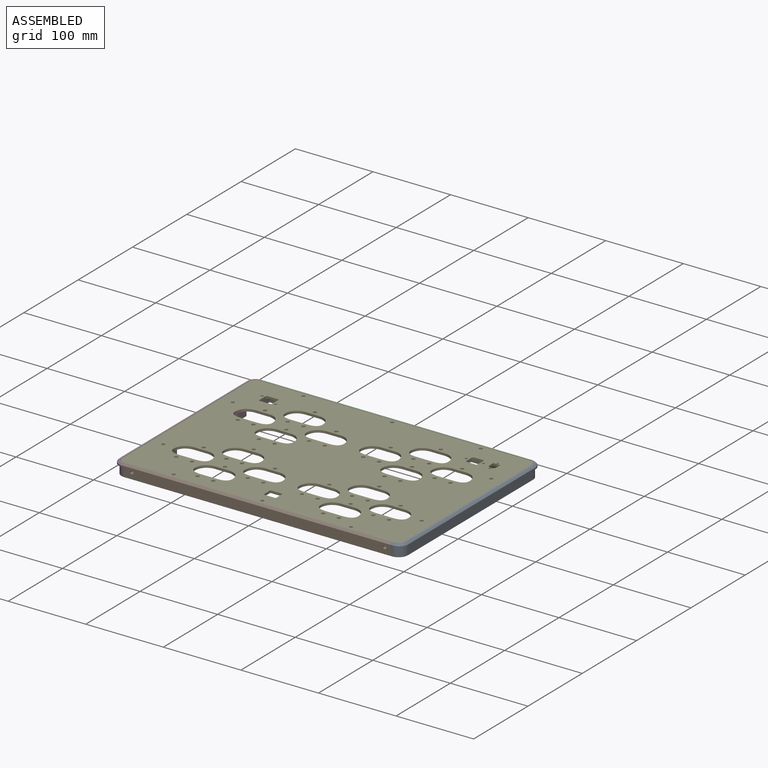
[diagram: assembled view]
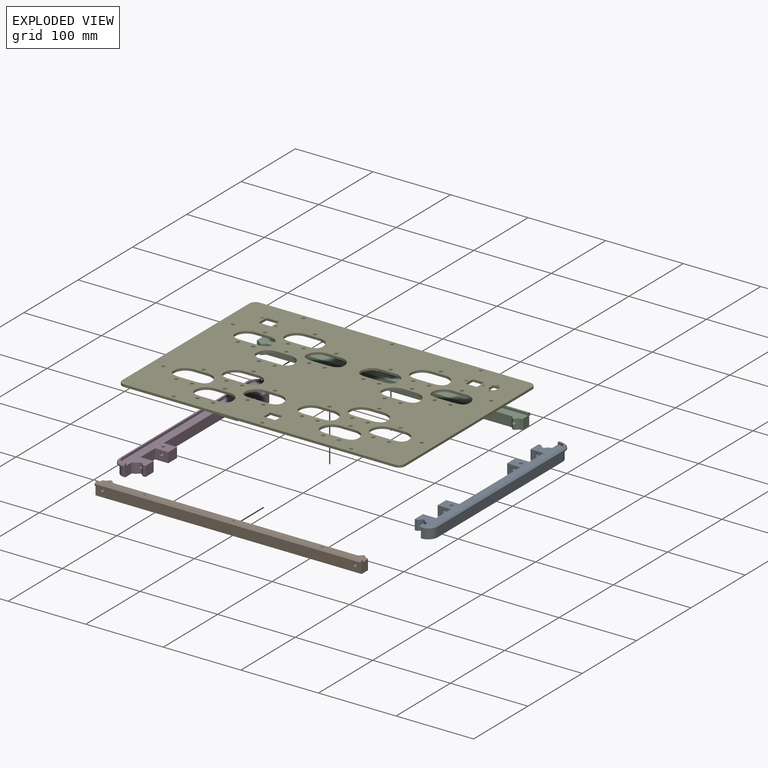
[diagram: exploded view]
GUIDED TOUR — MATED ASSEMBLY (Onshape document bec6d169b507df4146d0d904, AutoMate assembly bec6d169b507df4146d0d904_c9003fdbdb5de27b9853175a_92774588e3540b95fff6c038_default)

This assembly has 5 components, labeled P0..P4 below (a component is one placed occurrence of a part; the same part can appear more than once), held together by 13 mates. A mate is a constraint between two components; its type names the relative motion it leaves free:
  PLANAR — leaves sliding in the plane through the listed point (normal = the listed direction) and rotation about that normal free.
Axis/direction vectors are unit vectors and 'through' points are millimeter coordinates, both in the assembly's world frame.

MATES
  1. PLANAR "Planar 11": P4 <-> P2, direction (0.000, 0.000, -1.000) through (203.62, 140.74, 5.19) mm
  2. PLANAR "Planar 13": P4 <-> P1, direction (0.000, -1.000, 0.000) through (203.72, 14.48, 6.69) mm
  3. PLANAR "Planar 2": P1 <-> P3, direction (-1.000, 0.000, 0.000) through (32.22, 17.31, -0.67) mm
  4. PLANAR "Planar 5": P3 <-> P1, direction (0.000, 0.000, 1.000) through (30.47, 139.28, 5.19) mm
  5. PLANAR "Planar 10": P0 <-> P2, direction (0.000, 1.000, 0.000) through (375.77, 266.38, -1.71) mm
  6. PLANAR "Planar 8": P2 <-> P0, direction (1.000, 0.000, 0.000) through (375.22, 261.25, -0.67) mm
  7. PLANAR "Planar 12": P4 <-> P3, direction (-1.000, 0.000, 0.000) through (21.42, 139.28, 6.69) mm
  8. PLANAR "Planar 7": P0 <-> P1, direction (0.000, -1.000, 0.000) through (375.77, 12.18, -1.71) mm
  9. PLANAR "Planar 9": P2 <-> P0, direction (0.000, 0.000, 1.000) through (203.72, 258.70, 5.19) mm
  10. PLANAR "Planar 4": P1 <-> P3, direction (-1.000, 0.000, 0.000) through (32.22, 17.31, -0.67) mm
  11. PLANAR "Planar 1": P0 <-> P1, direction (0.000, 0.000, 1.000) through (376.96, 139.28, 5.19) mm
  12. PLANAR "Planar 6": P3 <-> P1, direction (0.000, -1.000, 0.000) through (31.67, 12.18, -1.71) mm
  13. PLANAR "Planar 3": P0 <-> P1, direction (-1.000, 0.000, 0.000) through (375.22, 17.31, -0.67) mm

ASSEMBLY ORDER
  1. P3 — the base component [order verified]
  2. P2 [order verified]
  3. P1 [order verified]
  4. P4 [order verified]
  5. P0 [order verified]
Order-tag legend:
  [order verified] — this step's position reverses a verified removal order: the component was checked to insert without passing through the ones already placed.

Of the 5 components, 4 carry the full construction recipe — the FeatureScript program that regenerates the part's solid from scratch; the rest are supplied as boundary geometry only.
Each toured component is shown spotlighted twice — in the assembled view, then in the exploded view, where a leader line traces a displaced component back to its assembled socket (saturated green if recipe-attached, orange if geometry-only; every other component desaturated gray) — followed by its recipe or geometry summary and the mates that hold it.
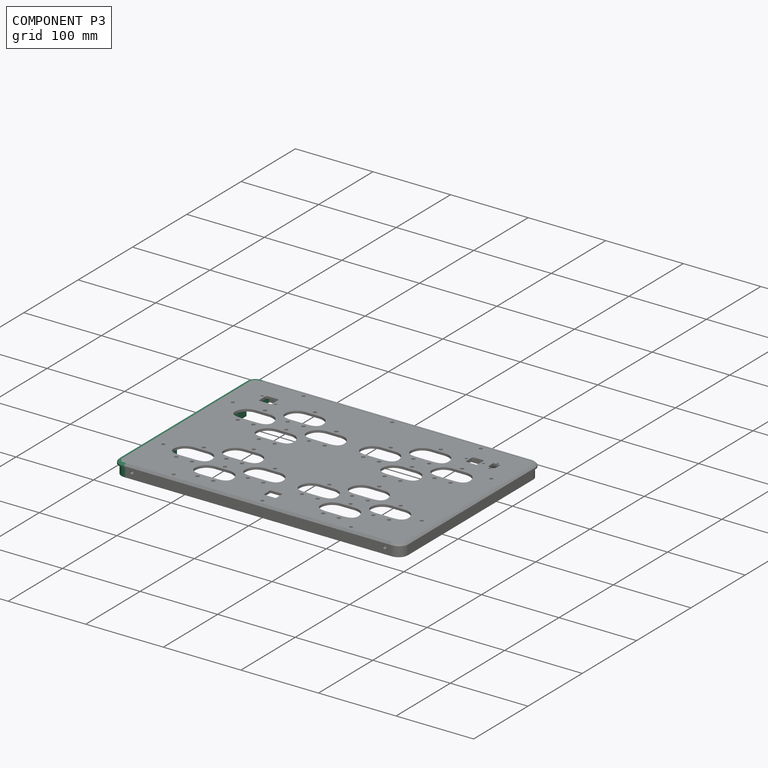
[diagram: component P3 — assembled]
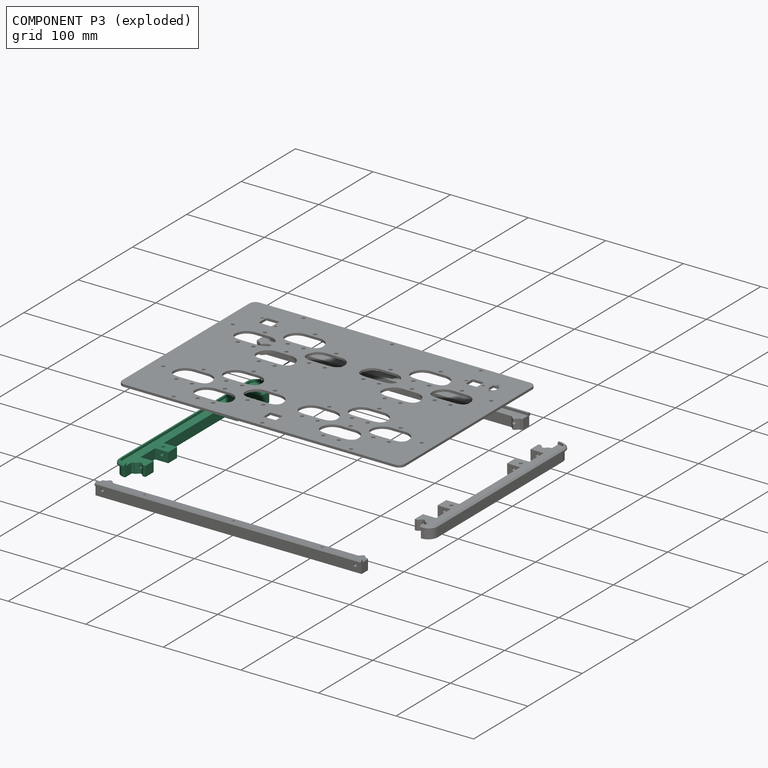
[diagram: component P3 — exploded]
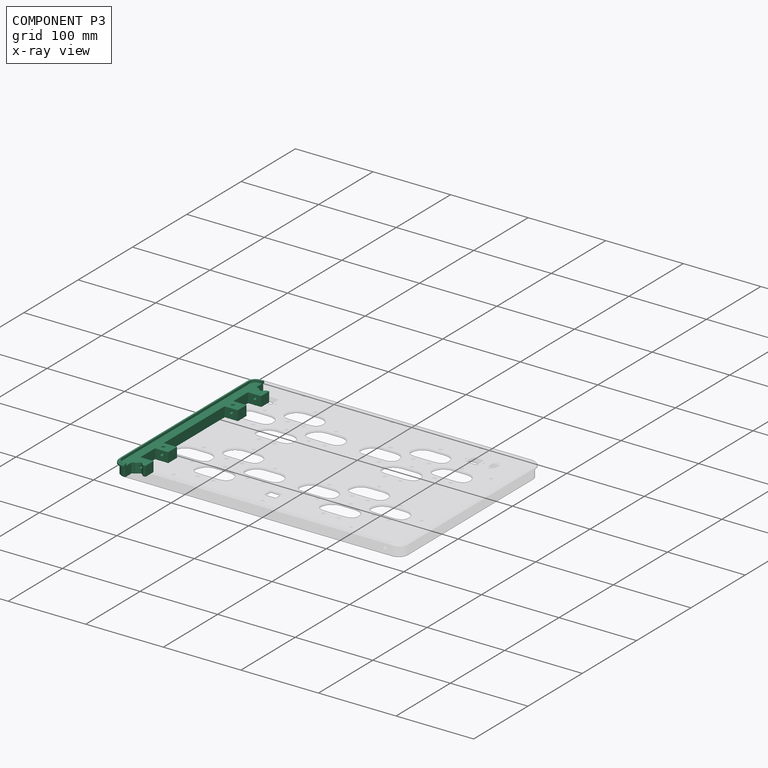
[diagram: component P3 — x-ray view]
COMPONENT P3 — same part as P0 (CADFS 00203078); its construction recipe is shown at P0.
Held by: PLANAR mate "Planar 2" to P1; PLANAR mate "Planar 5" to P1; PLANAR mate "Planar 12" to P4; PLANAR mate "Planar 4" to P1; PLANAR mate "Planar 6" to P1.
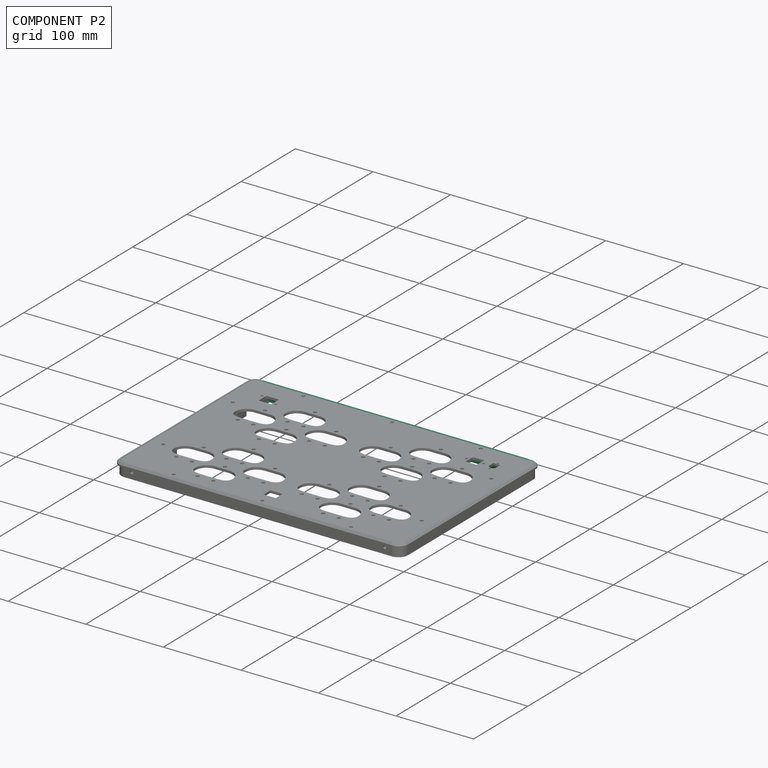
[diagram: component P2 — assembled]
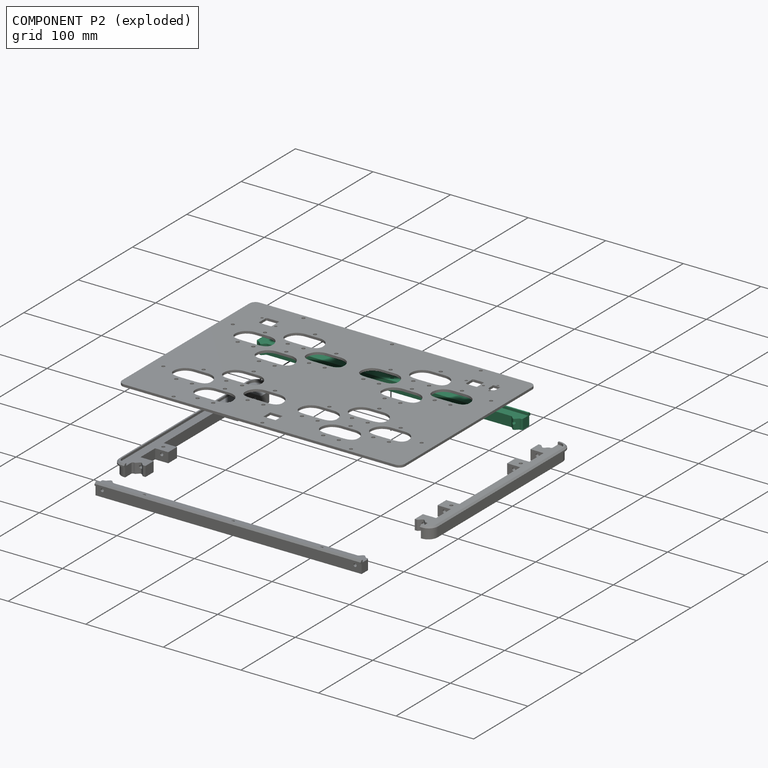
[diagram: component P2 — exploded]
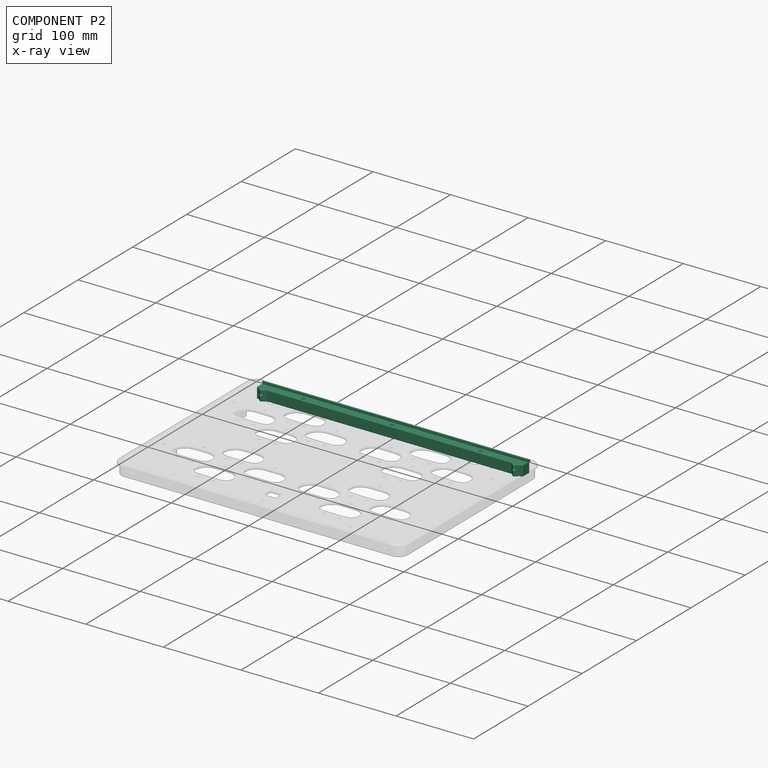
[diagram: component P2 — x-ray view]
COMPONENT P2 — same part as P1 (CADFS 00203082); its construction recipe is shown at P1.
Held by: PLANAR mate "Planar 11" to P4; PLANAR mate "Planar 10" to P0; PLANAR mate "Planar 8" to P0; PLANAR mate "Planar 9" to P0.
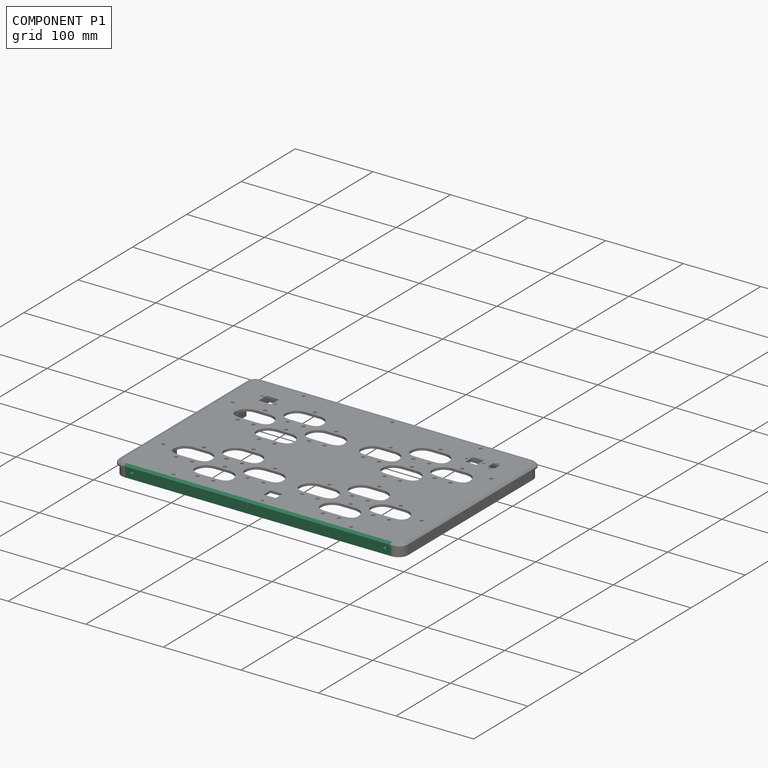
[diagram: component P1 — assembled]
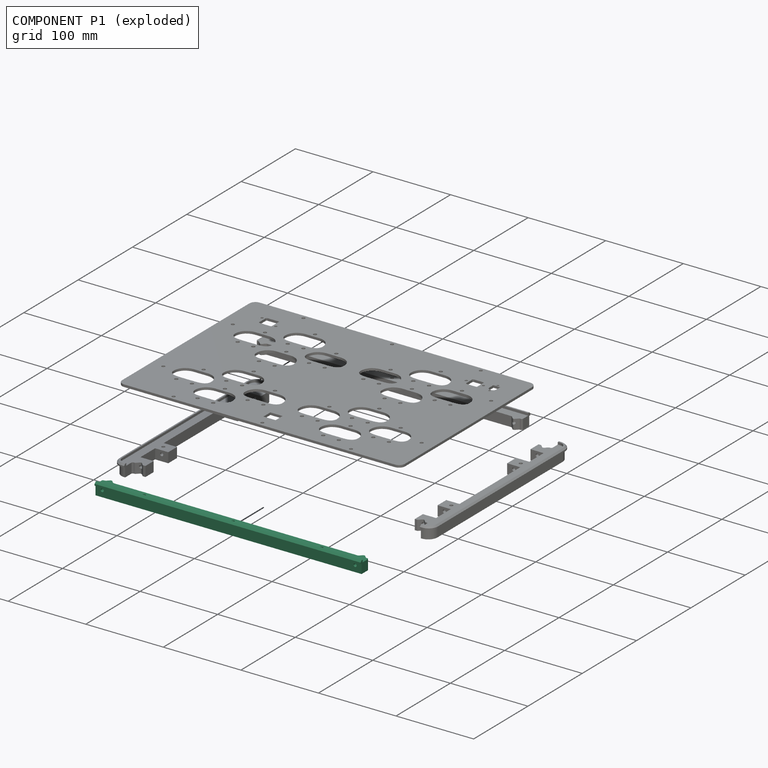
[diagram: component P1 — exploded]
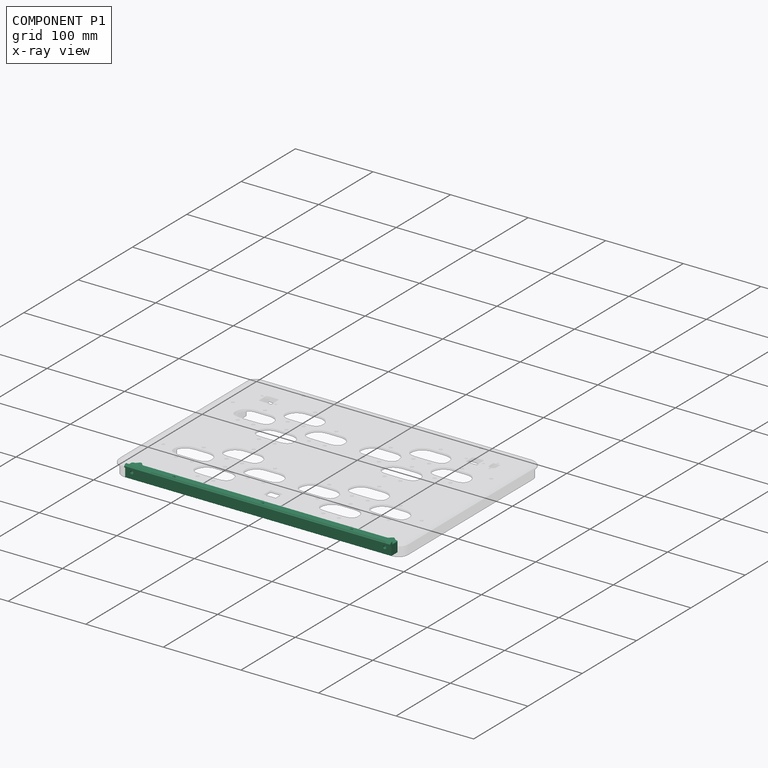
[diagram: component P1 — x-ray view]
COMPONENT P1 — recipe-attached (CADFS 00203082, mesh-verified: the recipe's output STEP matches this component's geometry to below the mesh-comparison resolution (tessellation chordal tolerance ~0.516 mm)).
Held by: PLANAR mate "Planar 13" to P4; PLANAR mate "Planar 2" to P3; PLANAR mate "Planar 5" to P3; PLANAR mate "Planar 7" to P0; PLANAR mate "Planar 4" to P3; PLANAR mate "Planar 1" to P0; PLANAR mate "Planar 6" to P3; PLANAR mate "Planar 3" to P0.
Construction recipe (FeatureScript — the CAD program that rebuilds this solid; sketch coordinates are in the units given by the * unit suffixes, e.g. mm):

FeatureScript 1511;
import(path : "onshape/std/geometry.fs", version : "1511.0");
import(path : "onshape/std/common.fs", version : "1511.0");
const mm = millimeter;
const VERTEX = EntityType.VERTEX;
const EDGE = EntityType.EDGE;
const FACE = EntityType.FACE;
const BODY = EntityType.BODY;
function v(x, y){return vector(x, y);}
function OD(order){return orderDisambiguation(order);}
function OSD(set){return originalSetDisambiguation(set);}
function TD(topology){return topologyDisambiguation(topology);}
function TDD(query){return trueDependencyDisambiguation(query);}
function sQuery(a, b, c) {return sketchEntityQuery(a, b, c);}

annotation { "Feature Type Name" : "Feature", "Feature Type Description" : "" }
export const myFeature = defineFeature(function(context is Context, id is Id, definition is map)
    precondition{}
    {
        {
            var Q0;
            Q0=qCreatedBy(makeId("Top.planeOp"),FACE);
            var sketch = newSketch(context, id + "F0", { "sketchPlane" : qUnion([Q0])});
            skLineSegment(sketch, "E0.top", {"start": v(-171.5, -131.22) * mm, "end": v(171.5, -131.22) * mm});
            skPoint(sketch, "E1.visualSharp", {"position": v(-186.5, -131.22) * mm});
            skLineSegment(sketch, "E2.top", {"start": v(-154.5, -116.22) * mm, "end": v(157.17, -116.22) * mm});
            skLineSegment(sketch, "E3", {"start": v(-154.5, -116.22) * mm, "end": v(-157.17, -116.22) * mm});
            skLineSegment(sketch, "E4", {"start": v(-158.59, -115.64) * mm, "end": v(-161.59, -112.64) * mm});
            skLineSegment(sketch, "E5", {"start": v(-164.41, -112.64) * mm, "end": v(-167.41, -115.64) * mm});
            skLineSegment(sketch, "E6", {"start": v(-168.83, -116.22) * mm, "end": v(-169.5, -116.22) * mm});
            skLineSegment(sketch, "E7", {"start": v(-171.5, -118.22) * mm, "end": v(-171.5, -127.73) * mm});
            skArc(sketch, "E8.filletArc", {"start": v(-161.59, -112.64) * mm, "mid": v(-163, -112.05) * mm, "end": v(-164.41, -112.64) * mm});
            skPoint(sketch, "E9.visualSharp", {"position": v(-158, -116.22) * mm});
            skArc(sketch, "E9.filletArc", {"start": v(-158.59, -115.64) * mm, "mid": v(-157.94, -116.07) * mm, "end": v(-157.17, -116.22) * mm});
            skPoint(sketch, "E10.visualSharp", {"position": v(-168, -116.22) * mm});
            skArc(sketch, "E10.filletArc", {"start": v(-168.83, -116.22) * mm, "mid": v(-168.06, -116.07) * mm, "end": v(-167.41, -115.64) * mm});
            skPoint(sketch, "E11.visualSharp", {"position": v(-171.5, -116.22) * mm});
            skArc(sketch, "E11.filletArc", {"start": v(-169.5, -116.22) * mm, "mid": v(-170.91, -116.8) * mm, "end": v(-171.5, -118.22) * mm});
            skLineSegment(sketch, "E12", {"start": v(-171.5, -127.73) * mm, "end": v(-171.5, -131.22) * mm});
            skArc(sketch, "E13.MirrorCS", {"start": v(158.59, -115.64) * mm, "mid": v(157.94, -116.07) * mm, "end": v(157.17, -116.22) * mm});
            skLineSegment(sketch, "E14.MirrorCS", {"start": v(158.59, -115.64) * mm, "end": v(161.59, -112.64) * mm});
            skArc(sketch, "E15.MirrorCS", {"start": v(161.59, -112.64) * mm, "mid": v(163, -112.05) * mm, "end": v(164.41, -112.64) * mm});
            skLineSegment(sketch, "E16.MirrorCS", {"start": v(164.41, -112.64) * mm, "end": v(167.41, -115.64) * mm});
            skArc(sketch, "E17.MirrorCS", {"start": v(168.83, -116.22) * mm, "mid": v(168.06, -116.07) * mm, "end": v(167.41, -115.64) * mm});
            skArc(sketch, "E18.MirrorCS", {"start": v(169.5, -116.22) * mm, "mid": v(170.91, -116.8) * mm, "end": v(171.5, -118.22) * mm});
            skLineSegment(sketch, "E19.MirrorCS", {"start": v(171.5, -118.22) * mm, "end": v(171.5, -127.73) * mm});
            skLineSegment(sketch, "E20.MirrorCS", {"start": v(171.5, -127.73) * mm, "end": v(171.5, -131.22) * mm});
            skLineSegment(sketch, "E21.trimOffspring", {"start": v(168.83, -116.22) * mm, "end": v(169.5, -116.22) * mm});
            skPoint(sketch, "E22.MirrorCS.end.orphan", {"position": v(157.17, -116.22) * mm});
            skPoint(sketch, "E22.MirrorCS.start.orphan", {"position": v(154.5, -116.22) * mm});
            skPoint(sketch, "E23.MirrorCS.end.orphan", {"position": v(169.5, -116.22) * mm});
            skCircle(sketch, "E24", {"center": v(-114.33, -121.72) * mm, "radius": 2 * mm});
            skCircle(sketch, "E25", {"center": v(0, -121.72) * mm, "radius": 2 * mm});
            skPoint(sketch, "E25.centerSnap0", {"position": v(0, -131.22) * mm});
            skCircle(sketch, "E26", {"center": v(114.33, -121.72) * mm, "radius": 2 * mm});
            skSolve(sketch);
        }
        {
            var Q0;
            Q0 = qSketchRegion(id + "F0", true);
            extrude(context, id + "F1", {"entities" : qUnion([Q0]), "depth" : 16 * mm});
        }
        {
            var Q0;
            Q0=makeQuery(id+"F1.opExtrude","CAP_EDGE",EDGE,{"disambiguationData":[OSD([sQuery(id+"F0.wireOp",EDGE,"E0.top")])],"isStart":false});
            chamfer(context, id + "F2", {"entities" : qUnion([Q0]), "width" : 2 * mm, "tangentPropagation" : true});
        }
        {
            var Q0;
            Q0=makeQuery(id+"F1.opExtrude","CAP_FACE",FACE,{"disambiguationData":[OSD([sQuery(id+"F0.wireOp",EDGE,"E0.bottom"),sQuery(id+"F0.wireOp",EDGE,"E0.top"),sQuery(id+"F0.wireOp",EDGE,"E0.left"),sQuery(id+"F0.wireOp",EDGE,"E0.right"),sQuery(id+"F0.wireOp",EDGE,"E1.filletArc"),sQuery(id+"F0.wireOp",EDGE,"b9720682-2eae-4cc5-adf0-be07a7641b49.filletArc"),sQuery(id+"F0.wireOp",EDGE,"0606984b-c95c-4b6f-a22b-b9101ec73185.filletArc"),sQuery(id+"F0.wireOp",EDGE,"ed30f497-0052-4637-aeee-16b670f2d78a.filletArc"),sQuery(id+"F0.wireOp",EDGE,"E2.bottom"),sQuery(id+"F0.wireOp",EDGE,"E2.top"),sQuery(id+"F0.wireOp",EDGE,"E2.left"),sQuery(id+"F0.wireOp",EDGE,"E2.right")])],"isStart":false});
            var sketch = newSketch(context, id + "F3", { "sketchPlane" : qUnion([Q0])});
            skLineSegment(sketch, "E27.3", {"start": v(-174.5, -127.22) * mm, "end": v(174.5, -127.22) * mm});
            skLineSegment(sketch, "E28", {"start": v(-174.5, -127.22) * mm, "end": v(-174.5, -111.22) * mm});
            skLineSegment(sketch, "E29", {"start": v(174.5, -127.22) * mm, "end": v(174.5, -111.22) * mm});
            skLineSegment(sketch, "E30", {"start": v(-174.5, -111.22) * mm, "end": v(174.5, -111.22) * mm});
            skSolve(sketch);
        }
        {
            var Q0;
            Q0=qSketchRegion(id+"F3",true);
            extrude(context, id + "F4", {"entities" : qUnion([Q0]), "operationType" : NewBodyOperationType.REMOVE, "oppositeDirection" : true, "depth" : 3.1 * mm});
        }
        {
            var Q0;
            Q0=makeQuery(id+"F0.imprint","IMPRINT",FACE,{"disambiguationData":[TD([[makeQuery(id+"F0.imprint","IMPRINT",EDGE,{"derivedFrom":sQuery(id+"F0.wireOp",EDGE,"E0.top")}),1.0]])]});
            var sketch = newSketch(context, id + "F5", { "sketchPlane" : qUnion([Q0])});
            skLineSegment(sketch, "E31.5", {"start": v(-172.6, -129.32) * mm, "end": v(172.6, -129.32) * mm});
            skLineSegment(sketch, "E32.5", {"start": v(-172.6, -134.32) * mm, "end": v(172.6, -134.32) * mm});
            skLineSegment(sketch, "E33", {"start": v(-172.6, -129.32) * mm, "end": v(-172.6, -134.32) * mm});
            skLineSegment(sketch, "E34", {"start": v(172.6, -129.32) * mm, "end": v(172.6, -134.32) * mm});
            skSolve(sketch);
        }
        {
            var Q0;
            Q0=qSketchRegion(id+"F5",true);
            extrude(context, id + "F6", {"entities" : qUnion([Q0]), "operationType" : NewBodyOperationType.REMOVE, "depth" : 12 * mm});
        }
        {
            var Q0;
            Q0=makeQuery(id+"F6.boolean.opBoolean","COPY",FACE,{"derivedFrom":makeQuery(id+"F6.opExtrude","SWEPT_FACE",FACE,{"disambiguationData":[OSD([sQuery(id+"F5.wireOp",EDGE,"E31.5")])]})});
            var sketch = newSketch(context, id + "F7", { "sketchPlane" : qUnion([Q0])});
            skCircle(sketch, "E35", {"center": v(-163, 8) * mm, "radius": 2 * mm});
            skCircle(sketch, "E36.MirrorC", {"center": v(163, 8) * mm, "radius": 2 * mm});
            skSolve(sketch);
        }
        {
            var Q0;
            Q0=qSketchRegion(id+"F7",true);
            extrude(context, id + "F8", {"entities" : qUnion([Q0]), "operationType" : NewBodyOperationType.REMOVE, "endBound" : BoundingType.THROUGH_ALL, "oppositeDirection" : true, "depth" : 25 * mm});
        }
    });
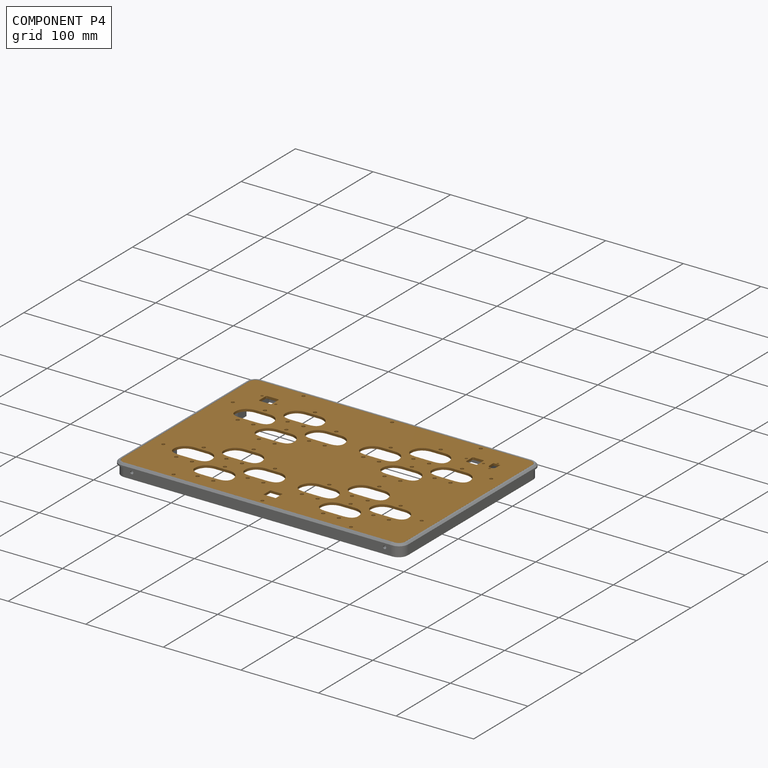
[diagram: component P4 — assembled]
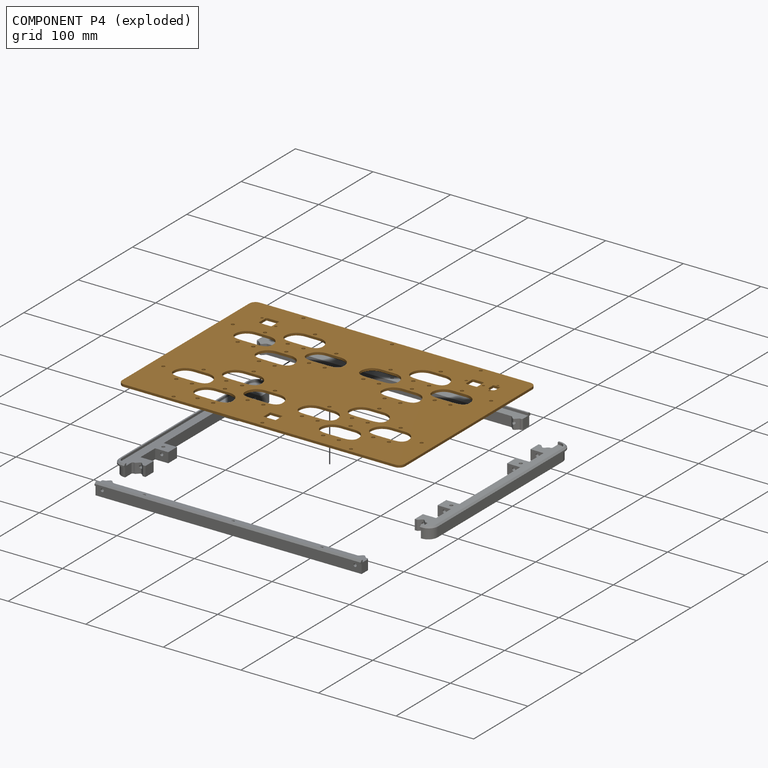
[diagram: component P4 — exploded]
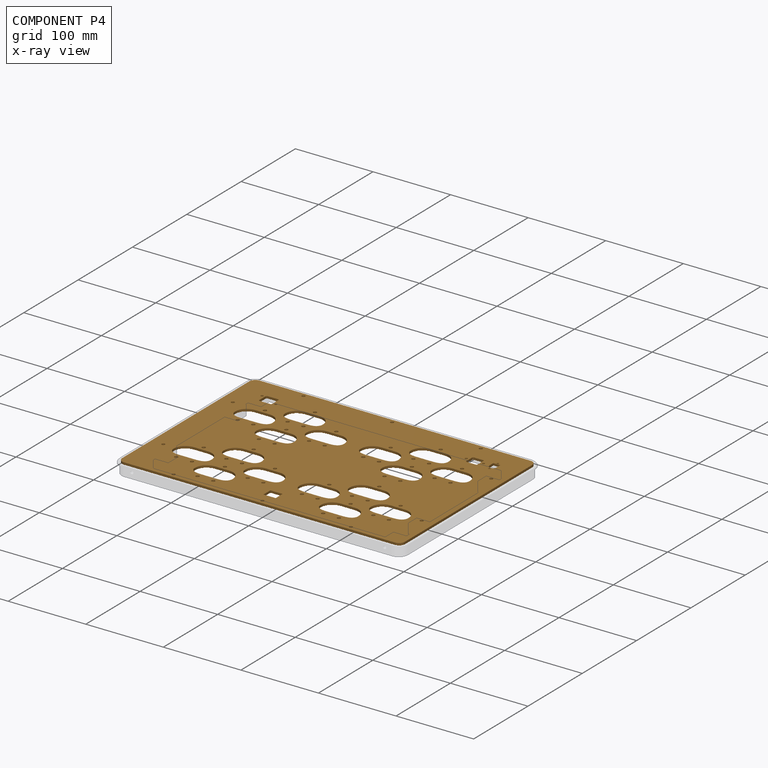
[diagram: component P4 — x-ray view]
COMPONENT P4 — geometry summary (no construction recipe available for this part):
  bounding box: 364.6 x 249.6 x 3.0 mm
  B-rep topology: 1 solid, 260 faces, 1548 edges
  volume: 217446 mm^3 (80% of its bounding box)
  symmetry: mirror-symmetric across its z mid-plane
Held by: PLANAR mate "Planar 11" to P2; PLANAR mate "Planar 13" to P1; PLANAR mate "Planar 12" to P3.
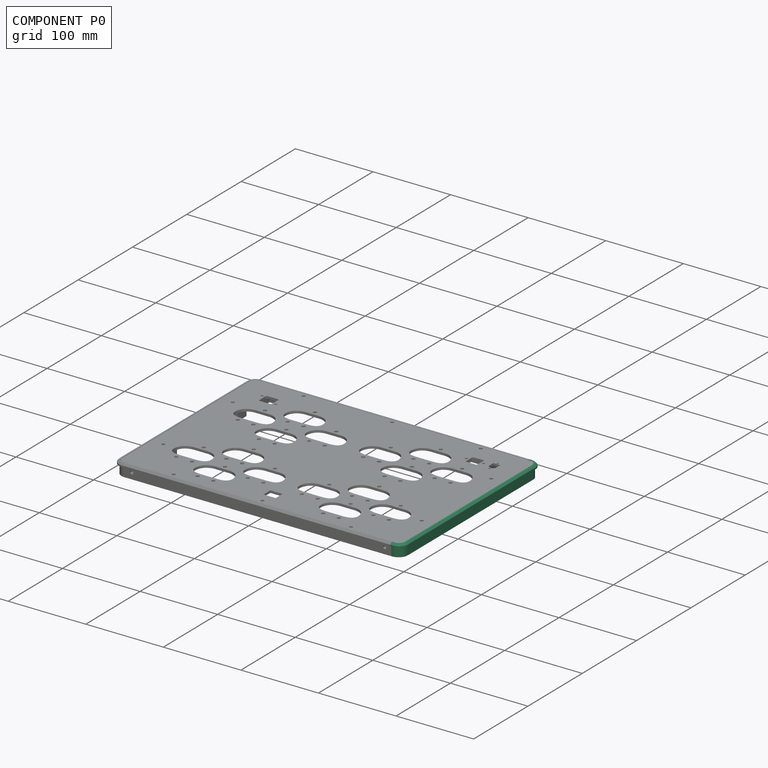
[diagram: component P0 — assembled]
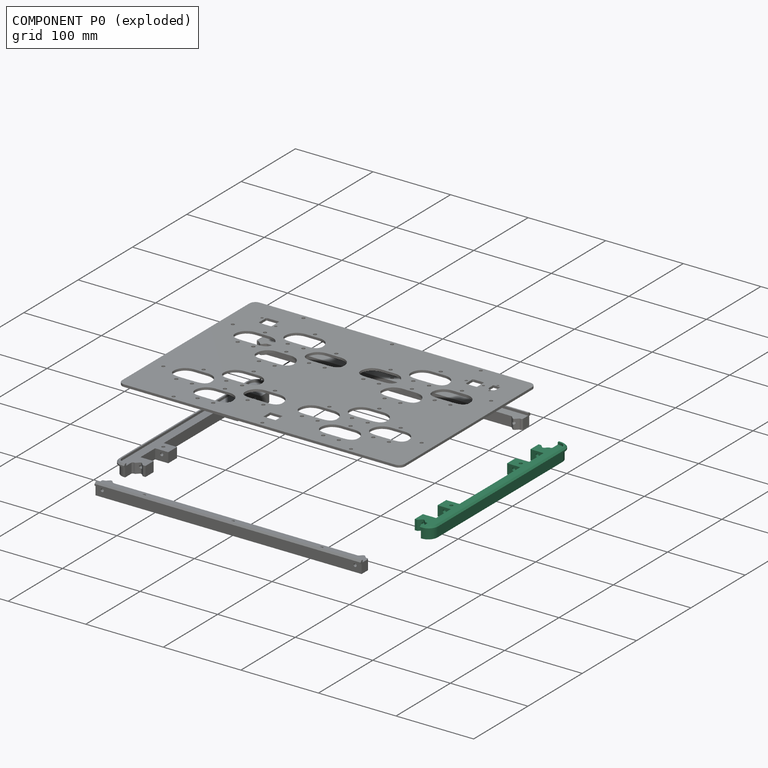
[diagram: component P0 — exploded]
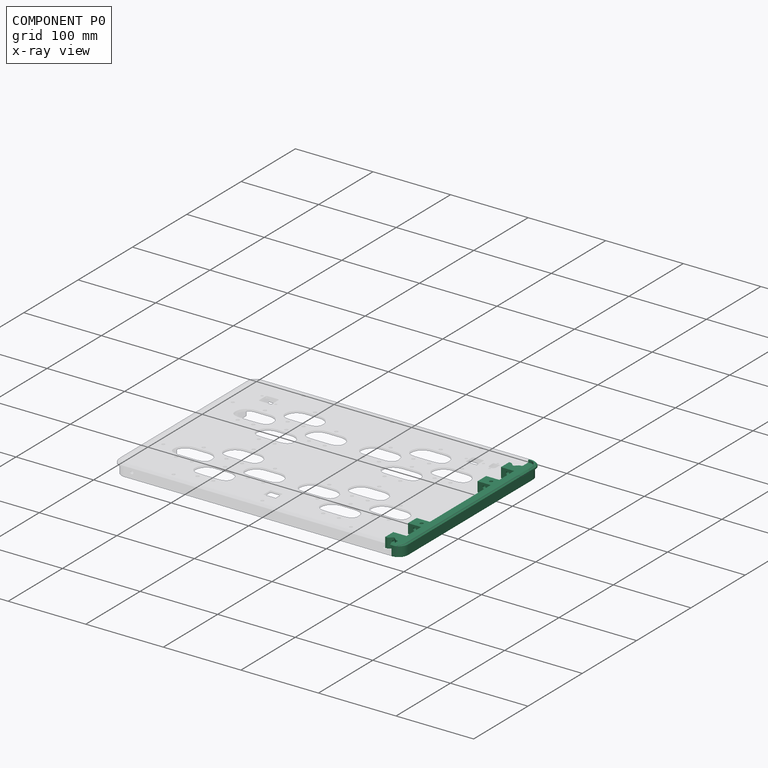
[diagram: component P0 — x-ray view]
COMPONENT P0 — recipe-attached (CADFS 00203078, mesh-verified: the recipe's output STEP matches this component's geometry to below the mesh-comparison resolution (tessellation chordal tolerance ~0.391 mm)).
Held by: PLANAR mate "Planar 10" to P2; PLANAR mate "Planar 8" to P2; PLANAR mate "Planar 7" to P1; PLANAR mate "Planar 9" to P2; PLANAR mate "Planar 1" to P1; PLANAR mate "Planar 3" to P1.
Construction recipe (FeatureScript — the CAD program that rebuilds this solid; sketch coordinates are in the units given by the * unit suffixes, e.g. mm):

FeatureScript 1511;
import(path : "onshape/std/geometry.fs", version : "1511.0");
import(path : "onshape/std/common.fs", version : "1511.0");
const mm = millimeter;
const VERTEX = EntityType.VERTEX;
const EDGE = EntityType.EDGE;
const FACE = EntityType.FACE;
const BODY = EntityType.BODY;
function v(x, y){return vector(x, y);}
function OD(order){return orderDisambiguation(order);}
function OSD(set){return originalSetDisambiguation(set);}
function TD(topology){return topologyDisambiguation(topology);}
function TDD(query){return trueDependencyDisambiguation(query);}
function sQuery(a, b, c) {return sketchEntityQuery(a, b, c);}

annotation { "Feature Type Name" : "Feature", "Feature Type Description" : "" }
export const myFeature = defineFeature(function(context is Context, id is Id, definition is map)
    precondition{}
    {
        {
            var Q0;
            Q0=qCreatedBy(makeId("Top.planeOp"),FACE);
            var sketch = newSketch(context, id + "F0", { "sketchPlane" : qUnion([Q0])});
            skLineSegment(sketch, "E0.bottom", {"start": v(-174.5, 129) * mm, "end": v(-171.5, 129) * mm});
            skLineSegment(sketch, "E0.top", {"start": v(-174.5, -129) * mm, "end": v(-171.5, -129) * mm});
            skLineSegment(sketch, "E0.left", {"start": v(-186.5, 117) * mm, "end": v(-186.5, -117) * mm});
            skPoint(sketch, "E1.visualSharp", {"position": v(-186.5, -129) * mm});
            skArc(sketch, "E1.filletArc", {"start": v(-186.5, -117) * mm, "mid": v(-182.99, -125.49) * mm, "end": v(-174.5, -129) * mm});
            skPoint(sketch, "E2.visualSharp", {"position": v(-186.5, 129) * mm});
            skArc(sketch, "E2.filletArc", {"start": v(-174.5, 129) * mm, "mid": v(-182.99, 125.49) * mm, "end": v(-186.5, 117) * mm});
            skLineSegment(sketch, "E3.left", {"start": v(-171.5, 99) * mm, "end": v(-171.5, 72) * mm});
            skLineSegment(sketch, "E4.bottom", {"start": v(-171.5, 72) * mm, "end": v(-154.5, 72) * mm});
            skLineSegment(sketch, "E4.top", {"start": v(-171.5, 56) * mm, "end": v(-154.5, 56) * mm});
            skLineSegment(sketch, "E4.right", {"start": v(-154.5, 72) * mm, "end": v(-154.5, 56) * mm});
            skLineSegment(sketch, "E5.trimOffspring", {"start": v(-171.5, 56) * mm, "end": v(-171.5, -56) * mm});
            skLineSegment(sketch, "E6.MirrorCS", {"start": v(-171.5, -56) * mm, "end": v(-154.5, -56) * mm});
            skLineSegment(sketch, "E7.MirrorCS", {"start": v(-154.5, -72) * mm, "end": v(-154.5, -56) * mm});
            skLineSegment(sketch, "E8.MirrorCS", {"start": v(-171.5, -72) * mm, "end": v(-154.5, -72) * mm});
            skLineSegment(sketch, "E9.trimOffspring", {"start": v(-171.5, -72) * mm, "end": v(-171.5, -99) * mm});
            skCircle(sketch, "E10", {"center": v(-166.5, 64) * mm, "radius": 2.1 * mm});
            skCircle(sketch, "E11.MirrorC", {"center": v(-166.5, -64) * mm, "radius": 2.1 * mm});
            skLineSegment(sketch, "E12.top", {"start": v(-171.5, 99) * mm, "end": v(-154.5, 99) * mm});
            skLineSegment(sketch, "E12.right", {"start": v(-154.5, 114) * mm, "end": v(-154.5, 99) * mm});
            skLineSegment(sketch, "E13.MirrorCS", {"start": v(-171.5, -99) * mm, "end": v(-154.5, -99) * mm});
            skLineSegment(sketch, "E14.MirrorCS", {"start": v(-154.5, -114) * mm, "end": v(-154.5, -99) * mm});
            skLineSegment(sketch, "E15", {"start": v(-154.5, -114) * mm, "end": v(-157.17, -114) * mm});
            skLineSegment(sketch, "E16", {"start": v(-158.59, -113.41) * mm, "end": v(-161.59, -110.41) * mm});
            skLineSegment(sketch, "E17", {"start": v(-164.41, -110.41) * mm, "end": v(-167.41, -113.41) * mm});
            skLineSegment(sketch, "E18", {"start": v(-168.83, -114) * mm, "end": v(-169.5, -114) * mm});
            skLineSegment(sketch, "E19", {"start": v(-171.5, -116) * mm, "end": v(-171.5, -127.73) * mm});
            skPoint(sketch, "E20.visualSharp", {"position": v(-163, -109) * mm});
            skArc(sketch, "E20.filletArc", {"start": v(-161.59, -110.41) * mm, "mid": v(-163, -109.83) * mm, "end": v(-164.41, -110.41) * mm});
            skPoint(sketch, "E21.visualSharp", {"position": v(-158, -114) * mm});
            skArc(sketch, "E21.filletArc", {"start": v(-158.59, -113.41) * mm, "mid": v(-157.94, -113.85) * mm, "end": v(-157.17, -114) * mm});
            skPoint(sketch, "E22.visualSharp", {"position": v(-168, -114) * mm});
            skArc(sketch, "E22.filletArc", {"start": v(-168.83, -114) * mm, "mid": v(-168.06, -113.85) * mm, "end": v(-167.41, -113.41) * mm});
            skPoint(sketch, "E23.visualSharp", {"position": v(-171.5, -114) * mm});
            skArc(sketch, "E23.filletArc", {"start": v(-169.5, -114) * mm, "mid": v(-170.91, -114.59) * mm, "end": v(-171.5, -116) * mm});
            skLineSegment(sketch, "E24", {"start": v(-171.5, -127.73) * mm, "end": v(-171.5, -129) * mm});
            skLineSegment(sketch, "E25.MirrorCS", {"start": v(-154.5, 114) * mm, "end": v(-157.17, 114) * mm});
            skArc(sketch, "E26.MirrorCS", {"start": v(-158.59, 113.41) * mm, "mid": v(-157.94, 113.85) * mm, "end": v(-157.17, 114) * mm});
            skLineSegment(sketch, "E27.MirrorCS", {"start": v(-158.59, 113.41) * mm, "end": v(-161.59, 110.41) * mm});
            skArc(sketch, "E28.MirrorCS", {"start": v(-161.59, 110.41) * mm, "mid": v(-163, 109.83) * mm, "end": v(-164.41, 110.41) * mm});
            skLineSegment(sketch, "E29.MirrorCS", {"start": v(-164.41, 110.41) * mm, "end": v(-167.41, 113.41) * mm});
            skArc(sketch, "E30.MirrorCS", {"start": v(-168.83, 114) * mm, "mid": v(-168.06, 113.85) * mm, "end": v(-167.41, 113.41) * mm});
            skLineSegment(sketch, "E31.MirrorCS", {"start": v(-168.83, 114) * mm, "end": v(-169.5, 114) * mm});
            skArc(sketch, "E32.MirrorCS", {"start": v(-169.5, 114) * mm, "mid": v(-170.91, 114.59) * mm, "end": v(-171.5, 116) * mm});
            skLineSegment(sketch, "E33.MirrorCS", {"start": v(-171.5, 116) * mm, "end": v(-171.5, 127.73) * mm});
            skLineSegment(sketch, "E34", {"start": v(-171.5, 127.73) * mm, "end": v(-171.5, 129) * mm});
            skSolve(sketch);
        }
        {
            var Q0;
            Q0=makeQuery(id+"F0.imprint","IMPRINT",FACE,{"disambiguationData":[TD([[makeQuery(id+"F0.imprint","IMPRINT",EDGE,{"derivedFrom":sQuery(id+"F0.wireOp",EDGE,"E0.bottom")}),-1.0]])]});
            extrude(context, id + "F1", {"entities" : qUnion([Q0]), "depth" : 16 * mm});
        }
        {
            var Q0;
            Q0=makeQuery(id+"F1.opExtrude","CAP_EDGE",EDGE,{"disambiguationData":[OSD([sQuery(id+"F0.wireOp",EDGE,"E0.top")])],"isStart":false});
            chamfer(context, id + "F2", {"entities" : qUnion([Q0]), "width" : 2 * mm, "tangentPropagation" : true});
        }
        {
            var Q0;
            Q0=makeQuery(id+"F1.opExtrude","CAP_FACE",FACE,{"disambiguationData":[OSD([sQuery(id+"F0.wireOp",EDGE,"E0.bottom"),sQuery(id+"F0.wireOp",EDGE,"E0.top"),sQuery(id+"F0.wireOp",EDGE,"E0.left"),sQuery(id+"F0.wireOp",EDGE,"E0.right"),sQuery(id+"F0.wireOp",EDGE,"E1.filletArc"),sQuery(id+"F0.wireOp",EDGE,"E2.filletArc"),sQuery(id+"F0.wireOp",EDGE,"0606984b-c95c-4b6f-a22b-b9101ec73185.filletArc"),sQuery(id+"F0.wireOp",EDGE,"ed30f497-0052-4637-aeee-16b670f2d78a.filletArc"),sQuery(id+"F0.wireOp",EDGE,"E3.bottom"),sQuery(id+"F0.wireOp",EDGE,"E3.top"),sQuery(id+"F0.wireOp",EDGE,"E3.left"),sQuery(id+"F0.wireOp",EDGE,"E3.right")])],"isStart":false});
            var sketch = newSketch(context, id + "F3", { "sketchPlane" : qUnion([Q0])});
            skLineSegment(sketch, "E35.0", {"start": v(-182.5, 117) * mm, "end": v(-182.5, -117) * mm});
            skLineSegment(sketch, "E35.1", {"start": v(-153.81, 125) * mm, "end": v(-174.5, 125) * mm});
            skLineSegment(sketch, "E35.3", {"start": v(-174.5, -125) * mm, "end": v(-154.5, -125) * mm});
            skPoint(sketch, "E36.visualSharp", {"position": v(-182.5, -125) * mm});
            skArc(sketch, "E36.filletArc", {"start": v(-182.5, -117) * mm, "mid": v(-180.16, -122.66) * mm, "end": v(-174.5, -125) * mm});
            skPoint(sketch, "E37.visualSharp", {"position": v(-182.5, 125) * mm});
            skArc(sketch, "E37.filletArc", {"start": v(-174.5, 125) * mm, "mid": v(-180.16, 122.66) * mm, "end": v(-182.5, 117) * mm});
            skLineSegment(sketch, "E38", {"start": v(-153.81, 125) * mm, "end": v(-154.5, -125) * mm});
            skSolve(sketch);
        }
        {
            var Q0;
            Q0 = qSketchRegion(id + "F3", true);
            extrude(context, id + "F4", {"entities" : qUnion([Q0]), "operationType" : NewBodyOperationType.REMOVE, "oppositeDirection" : true, "depth" : 3.1 * mm});
        }
        {
            var Q0;
            Q0=makeQuery(id+"F0.imprint","IMPRINT",FACE,{"disambiguationData":[TD([[makeQuery(id+"F0.imprint","IMPRINT",EDGE,{"derivedFrom":sQuery(id+"F0.wireOp",EDGE,"E0.bottom")}),-1.0]])]});
            var sketch = newSketch(context, id + "F5", { "sketchPlane" : qUnion([Q0])});
            skLineSegment(sketch, "E39.1", {"start": v(-172.6, 127.1) * mm, "end": v(-152.2, 127.1) * mm});
            skLineSegment(sketch, "E39.2", {"start": v(-184.6, 115.1) * mm, "end": v(-184.6, -115.1) * mm});
            skLineSegment(sketch, "E39.5", {"start": v(-172.6, -127.1) * mm, "end": v(-152.2, -127.1) * mm});
            skArc(sketch, "E40.filletArc", {"start": v(-184.6, -115.1) * mm, "mid": v(-181.09, -123.59) * mm, "end": v(-172.6, -127.1) * mm});
            skArc(sketch, "E41.filletArc", {"start": v(-172.6, 127.1) * mm, "mid": v(-181.09, 123.59) * mm, "end": v(-184.6, 115.1) * mm});
            skArc(sketch, "E42.0", {"start": v(-172.6, 132.1) * mm, "mid": v(-184.62, 127.12) * mm, "end": v(-189.6, 115.1) * mm});
            skLineSegment(sketch, "E42.1", {"start": v(-172.6, 132.1) * mm, "end": v(-152.2, 132.1) * mm});
            skLineSegment(sketch, "E42.2", {"start": v(-189.6, 115.1) * mm, "end": v(-189.6, -115.1) * mm});
            skArc(sketch, "E42.4", {"start": v(-189.6, -115.1) * mm, "mid": v(-184.62, -127.12) * mm, "end": v(-172.6, -132.1) * mm});
            skLineSegment(sketch, "E42.5", {"start": v(-172.6, -132.1) * mm, "end": v(-152.2, -132.1) * mm});
            skLineSegment(sketch, "E43", {"start": v(-152.2, 132.1) * mm, "end": v(-152.2, 127.1) * mm});
            skLineSegment(sketch, "E44.MirrorCS", {"start": v(-152.2, -132.1) * mm, "end": v(-152.2, -127.1) * mm});
            skSolve(sketch);
        }
        {
            var Q0;
            Q0 = qSketchRegion(id + "F5", true);
            extrude(context, id + "F6", {"entities" : qUnion([Q0]), "operationType" : NewBodyOperationType.REMOVE, "depth" : 12 * mm});
        }
        {
            var Q0;
            Q0=makeQuery(id+"F6.boolean.opBoolean","COPY",FACE,{"derivedFrom":makeQuery(id+"F6.opExtrude","SWEPT_FACE",FACE,{"disambiguationData":[OSD([sQuery(id+"F5.wireOp",EDGE,"E39.5")])]})});
            var sketch = newSketch(context, id + "F7", { "sketchPlane" : qUnion([Q0])});
            skCircle(sketch, "E45", {"center": v(-163, 8) * mm, "radius": 2 * mm});
            skCircle(sketch, "E46.MirrorC", {"center": v(163, 8) * mm, "radius": 2 * mm});
            skSolve(sketch);
        }
        {
            var Q0;
            Q0 = qSketchRegion(id + "F7", true);
            extrude(context, id + "F8", {"entities" : qUnion([Q0]), "operationType" : NewBodyOperationType.REMOVE, "endBound" : BoundingType.THROUGH_ALL, "oppositeDirection" : true, "depth" : 25 * mm});
        }
    });
PROVENANCE & LICENSES
Assembly (occurrences, transforms, mates, per-part STEP geometry): AutoMate dataset, Zenodo record 7776208, CC0.
Construction recipes: CADFS (HuggingFace VladPyatov/CADFS, CC-BY-4.0, layered over the ABC dataset), FeatureScript reconstruction programs keyed by ABC model id.
Join: ABC meta listings map ABC model id -> Onshape documentId; within a shared document, parts are matched by geometric signature (bounding-box dims + volume at 0.1% relative tolerance, exact B-rep face/solid counts).
Verification: 4 of this assembly's 5 components carry a recipe attachment, and every attachment is mesh-verified: the CADFS STEP and the AutoMate member STEP were compared as meshes in their shared local frame (symmetric sampled-point-to-mesh distance); worst across the 4 attachments: below the mesh-comparison resolution (tessellation chordal tolerance ~0.516 mm) on a 344 mm part.
Renders: orthographic iso camera (az 35 / el 25); the floor grid conveys scale (grid pitch printed in each image; no ruler). In the exploded view each component is displaced by its stored offset vector: the offsets alone carry the explosion direction (mate normal/axis signs are not orientation cues and do not encode it), and separation distances are assigned per mate-chain, not proportionally to assembly-order depth.
